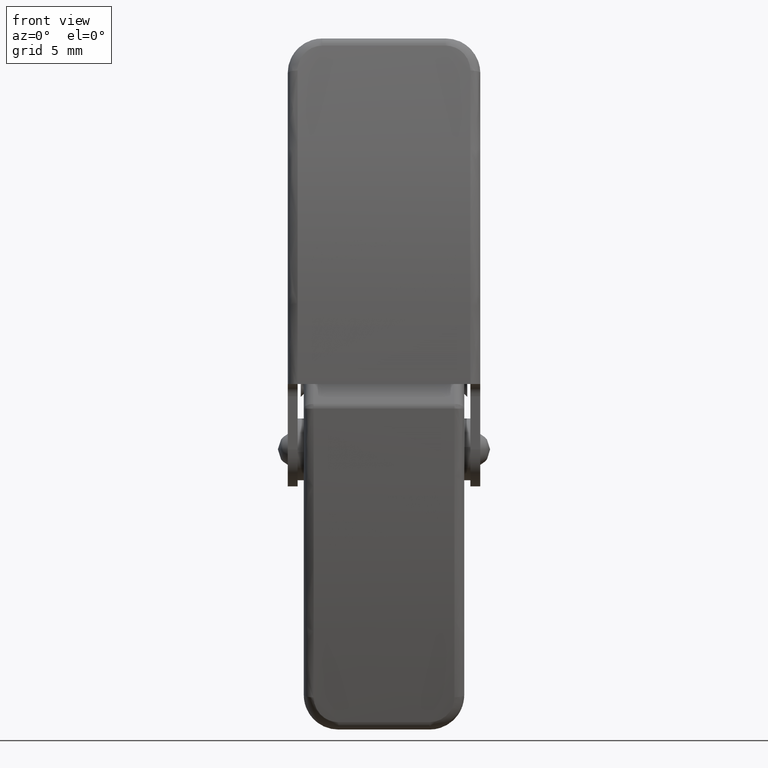
[diagram: clean part render]
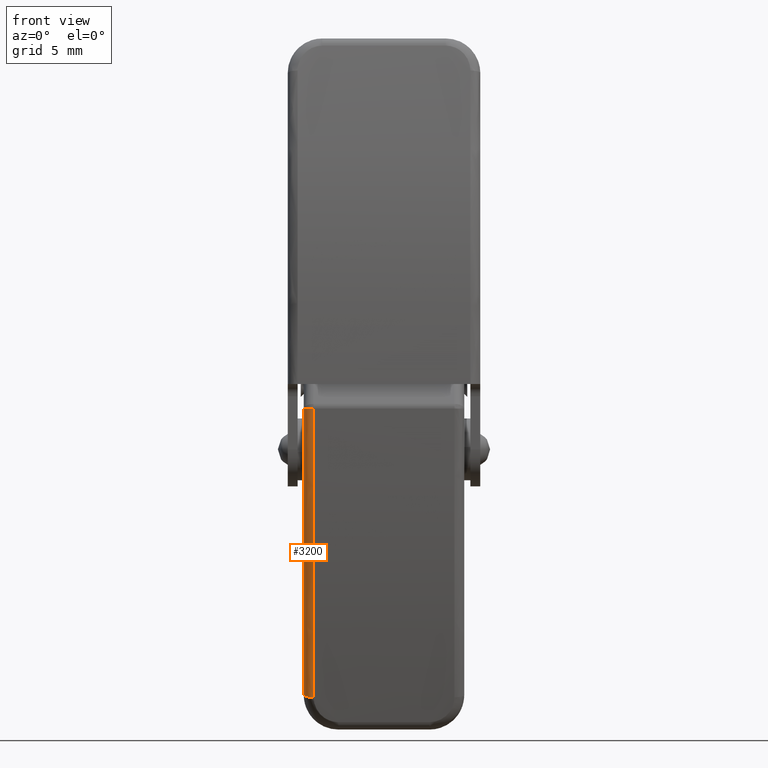
[diagram: same view with one face highlighted and labeled with its STEP entity id]
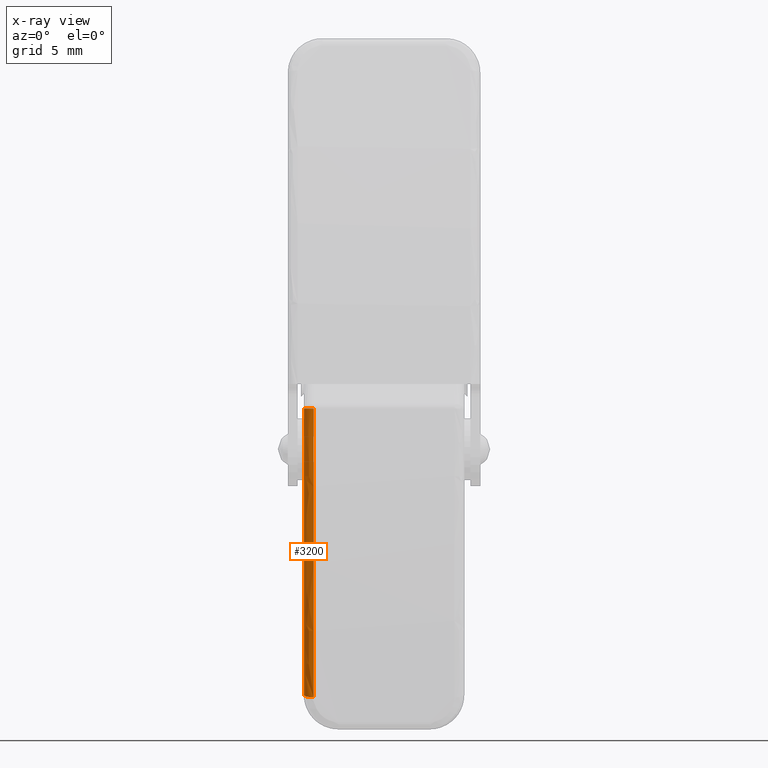
[diagram: x-ray of the same camera — body ghosted, the highlighted face saturated]
A machine part, front view. The second image highlights one B-rep face of the part: STEP entity #3200.
The next image is the same camera in x-ray: the body ghosted, the highlighted face saturated — about 0% of this face is hidden behind the body in this view.
In plain terms, the highlighted face is a freeform B-spline surface patch.
Its self-contained STEP definition (entity closure, byte-faithful):
#2748=CARTESIAN_POINT('',(-5.699999999994600,-8.999999999998671,7.299999999999480));
#2749=VERTEX_POINT('',#2748);
#2865=CARTESIAN_POINT('',(-6.499999999994600,-8.199999999998671,7.299999999999431));
#2866=VERTEX_POINT('',#2865);
#2882=CARTESIAN_POINT('',(-6.499999999994601,-8.199999999998671,7.299999999999431));
#2883=CARTESIAN_POINT('',(-6.499999999994601,-8.999999999998671,7.299999999999430));
#2884=CARTESIAN_POINT('',(-5.699999999994600,-8.999999999998671,7.299999999999480));
#2892=(BOUNDED_CURVE()B_SPLINE_CURVE(2,(#2882,#2883,#2884),.UNSPECIFIED.,.F.,.U.)CURVE()GEOMETRIC_REPRESENTATION_ITEM()QUASI_UNIFORM_CURVE()RATIONAL_B_SPLINE_CURVE((1.0,0.707106781186548,1.0))REPRESENTATION_ITEM(''));
#2893=EDGE_CURVE('',#2866,#2749,#2892,.T.);
#3137=CARTESIAN_POINT('',(-5.644220423293974,-5.968385200362064,-17.227338827695494));
#3138=CARTESIAN_POINT('',(-5.644220423293976,-9.143366445774754,-4.571551276257925));
#3139=CARTESIAN_POINT('',(-5.644220423293974,-8.991198156022728,8.475529212013711));
#3140=CARTESIAN_POINT('',(-6.561868778973483,-6.030596038532611,-17.242945777768742));
#3141=CARTESIAN_POINT('',(-6.561868778973482,-9.207597550967693,-4.579105243256226));
#3142=CARTESIAN_POINT('',(-6.561868778973481,-9.055332435264935,8.476277211046561));
#3143=CARTESIAN_POINT('',(-6.498073867543821,-5.140506024248210,-17.019647220441026));
#3144=CARTESIAN_POINT('',(-6.498073867543821,-8.288602291942976,-4.471025834729563));
#3145=CARTESIAN_POINT('',(-6.498073867543821,-8.137722526677594,8.465575113318664));
#3153=(BOUNDED_SURFACE()B_SPLINE_SURFACE(2,2,((#3137,#3140,#3143),(#3138,#3141,#3144),(#3139,#3142,#3145)),.UNSPECIFIED.,.F.,.F.,.U.)B_SPLINE_SURFACE_WITH_KNOTS((3,3),(3,3),(30.370995016098021,56.352767496109010),(0.178922840015590,1.636839351995289),.UNSPECIFIED.)GEOMETRIC_REPRESENTATION_ITEM()RATIONAL_B_SPLINE_SURFACE(((0.877304059710798,0.577309597611772,0.882190629055056),(0.870174594689654,0.572618055908545,0.875021453029697),(0.877565592863696,0.577481699402013,0.882453618943362)))REPRESENTATION_ITEM('')SURFACE());
#3154=CARTESIAN_POINT('',(-6.499999999994600,-5.471578582851699,-15.899999999996901));
#3155=VERTEX_POINT('',#3154);
#3156=CARTESIAN_POINT('',(-5.699999999994600,-6.249751211514520,-16.085599999996852));
#3157=VERTEX_POINT('',#3156);
#3158=CARTESIAN_POINT('',(-6.499999999994601,-5.471578582851699,-15.899999999996901));
#3159=CARTESIAN_POINT('',(-6.499999999994601,-6.249751211514523,-16.085599999996877));
#3160=CARTESIAN_POINT('',(-5.699999999994600,-6.249751211514523,-16.085599999996870));
#3168=(BOUNDED_CURVE()B_SPLINE_CURVE(2,(#3158,#3159,#3160),.UNSPECIFIED.,.F.,.U.)CURVE()GEOMETRIC_REPRESENTATION_ITEM()QUASI_UNIFORM_CURVE()RATIONAL_B_SPLINE_CURVE((1.0,0.707106781186548,1.0))REPRESENTATION_ITEM(''));
#3169=EDGE_CURVE('',#3155,#3157,#3168,.T.);
#3170=ORIENTED_EDGE('',*,*,#3169,.T.);
#3171=CARTESIAN_POINT('',(-5.699999999994600,-8.999999999998671,7.299999999999480));
#3172=CARTESIAN_POINT('',(-5.699999999994600,-8.999999999998593,-4.554520640019707));
#3173=CARTESIAN_POINT('',(-5.699999999994600,-6.249751211514520,-16.085599999996852));
#3181=(BOUNDED_CURVE()B_SPLINE_CURVE(2,(#3171,#3172,#3173),.UNSPECIFIED.,.F.,.U.)CURVE()GEOMETRIC_REPRESENTATION_ITEM()QUASI_UNIFORM_CURVE()RATIONAL_B_SPLINE_CURVE((1.0,0.993155523024599,1.0))REPRESENTATION_ITEM(''));
#3182=EDGE_CURVE('',#2749,#3157,#3181,.T.);
#3183=ORIENTED_EDGE('',*,*,#3182,.F.);
#3184=ORIENTED_EDGE('',*,*,#2893,.F.);
#3185=CARTESIAN_POINT('',(-6.499999999994600,-5.471578582851699,-15.899999999996901));
#3186=CARTESIAN_POINT('',(-6.499999999994601,-8.199999999998598,-4.460437142876720));
#3187=CARTESIAN_POINT('',(-6.499999999994600,-8.199999999998671,7.299999999999431));
#3195=(BOUNDED_CURVE()B_SPLINE_CURVE(2,(#3185,#3186,#3187),.UNSPECIFIED.,.F.,.U.)CURVE()GEOMETRIC_REPRESENTATION_ITEM()QUASI_UNIFORM_CURVE()RATIONAL_B_SPLINE_CURVE((1.0,0.993155523024599,1.0))REPRESENTATION_ITEM(''));
#3196=EDGE_CURVE('',#3155,#2866,#3195,.T.);
#3197=ORIENTED_EDGE('',*,*,#3196,.F.);
#3198=EDGE_LOOP('',(#3170,#3183,#3184,#3197));
#3199=FACE_OUTER_BOUND('',#3198,.T.);
#3200=ADVANCED_FACE('',(#3199),#3153,.T.);